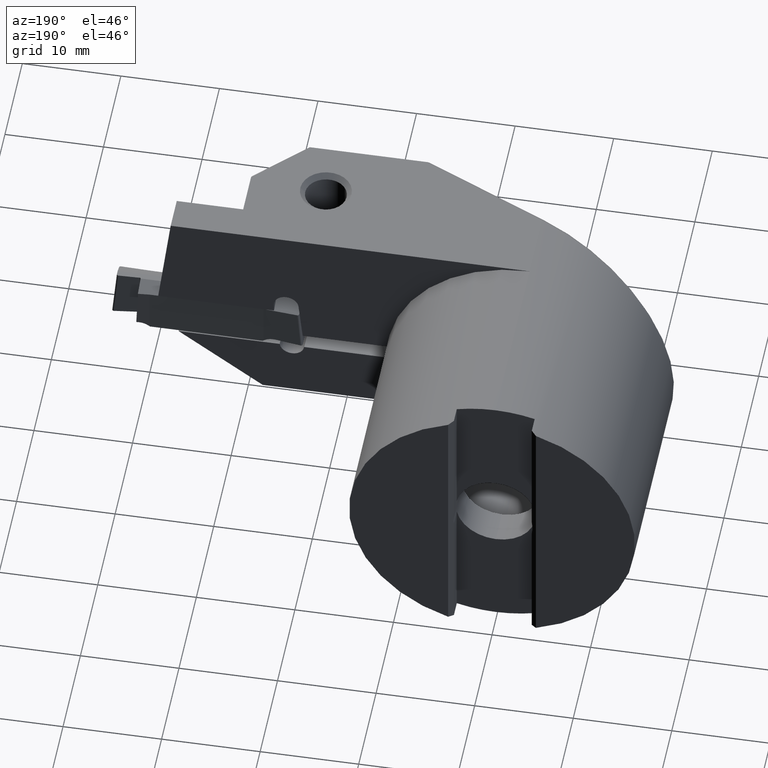
[diagram: clean part render]
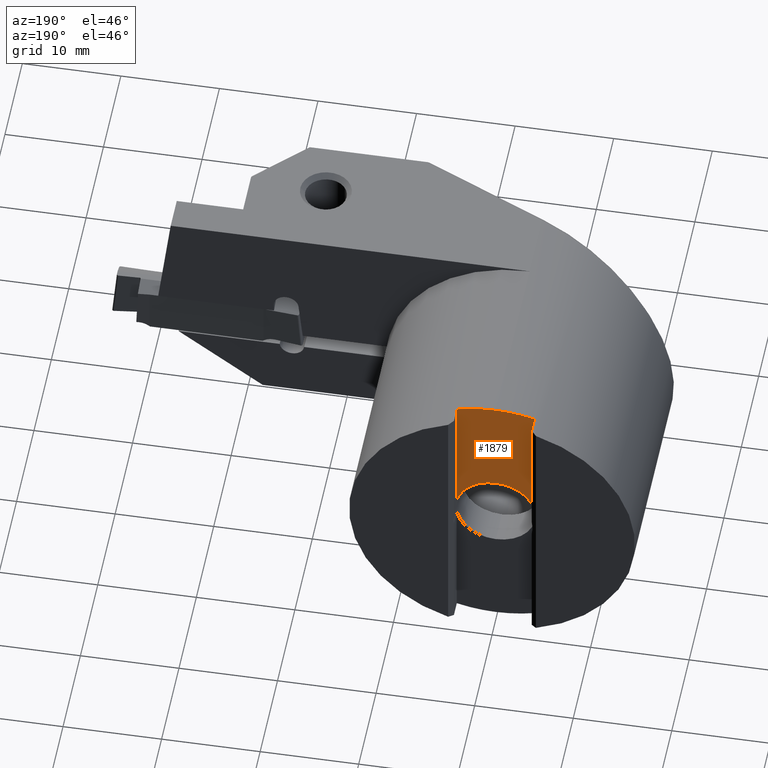
[diagram: same view with one face highlighted and labeled with its STEP entity id]
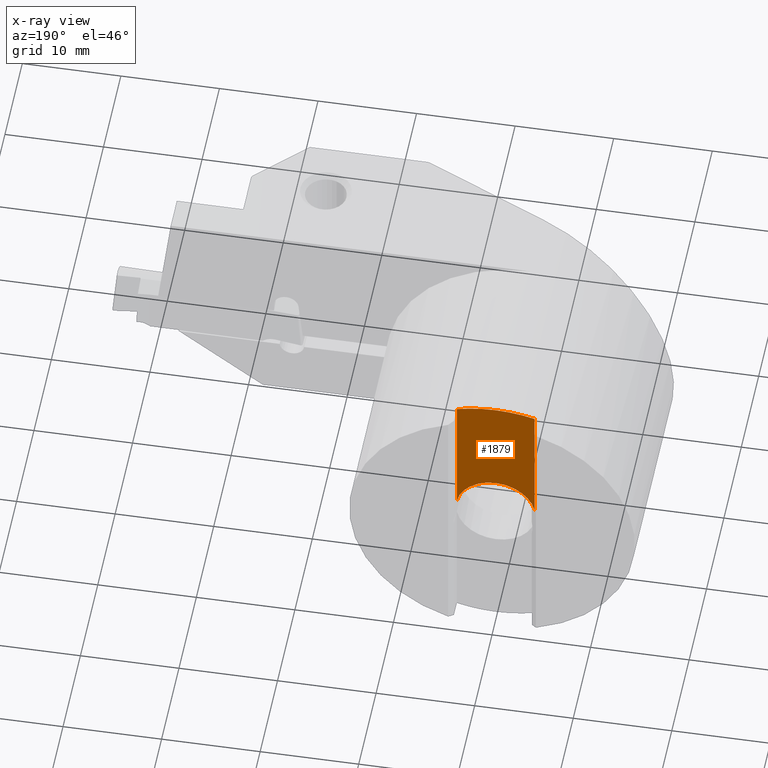
[diagram: x-ray of the same camera — body ghosted, the highlighted face saturated]
A machine part, auxiliary view. The second image highlights one B-rep face of the part: STEP entity #1879.
The next image is the same camera in x-ray: the body ghosted, the highlighted face saturated — about 0% of this face is hidden behind the body in this view.
In plain terms, the highlighted planar face has unit normal (0, -1, 0).
Its self-contained STEP definition (entity closure, byte-faithful):
#883=VERTEX_POINT('NONE',#2427);
#979=EDGE_CURVE('NONE',#2245,#1381,#2535,.T.);
#1045=VERTEX_POINT('NONE',#2606);
#1079=EDGE_CURVE('NONE',#1605,#1045,#2647,.F.);
#1283=EDGE_CURVE('NONE',#1475,#1045,#2865,.T.);
#1381=VERTEX_POINT('NONE',#2972);
#1475=VERTEX_POINT('NONE',#3075);
#1605=VERTEX_POINT('NONE',#3221);
#1879=ADVANCED_FACE('NONE',(#3520),#3521,.F.);
#1891=EDGE_CURVE('NONE',#883,#1475,#3534,.F.);
#1925=EDGE_CURVE('NONE',#1381,#1605,#3572,.F.);
#2163=EDGE_CURVE('NONE',#2245,#883,#3840,.F.);
#2245=VERTEX_POINT('NONE',#3926);
#2427=CARTESIAN_POINT('',(0.0,-2.15,14.5));
#2535=LINE('',#4517,#4518);
#2606=CARTESIAN_POINT('',(-3.95,-2.15,0.773385414912902));
#2647=CIRCLE('',#4750,4.025);
#2865=LINE('',#5098,#5099);
#2972=CARTESIAN_POINT('',(3.95,-2.15,0.773385414912902));
#3075=CARTESIAN_POINT('',(-3.95,-2.15,13.9516128099944));
#3221=CARTESIAN_POINT('',(0.0,-2.15,4.025));
#3520=FACE_OUTER_BOUND('',#6363,.T.);
#3521=PLANE('',#6364);
#3534=CIRCLE('',#6391,14.5);
#3572=CIRCLE('',#6437,4.025);
#3840=CIRCLE('',#6897,14.5);
#3926=CARTESIAN_POINT('',(3.95,-2.15,13.9516128099944));
#4517=CARTESIAN_POINT('',(3.95,-2.15,15.0));
#4518=VECTOR('',#7416,1.0);
#4750=AXIS2_PLACEMENT_3D('',#7544,#7545,#7546);
#5098=CARTESIAN_POINT('',(-3.95,-2.15,15.0));
#5099=VECTOR('',#7729,1.0);
#6363=EDGE_LOOP('',(#8445,#8446,#8447,#8448,#8449,#8450));
#6364=AXIS2_PLACEMENT_3D('',#8451,#8452,#8453);
#6391=AXIS2_PLACEMENT_3D('',#8463,#8464,#8465);
#6437=AXIS2_PLACEMENT_3D('',#8509,#8510,#8511);
#6897=AXIS2_PLACEMENT_3D('',#8826,#8827,#8828);
#7416=DIRECTION('',(0.0,0.0,-1.0));
#7544=CARTESIAN_POINT('',(0.0,-2.15,0.0));
#7545=DIRECTION('',(-0.0,1.0,0.0));
#7546=DIRECTION('',(0.0,0.0,1.0));
#7729=DIRECTION('',(0.0,0.0,-1.0));
#8445=ORIENTED_EDGE('',*,*,#2163,.F.);
#8446=ORIENTED_EDGE('',*,*,#979,.T.);
#8447=ORIENTED_EDGE('',*,*,#1925,.T.);
#8448=ORIENTED_EDGE('',*,*,#1079,.T.);
#8449=ORIENTED_EDGE('',*,*,#1283,.F.);
#8450=ORIENTED_EDGE('',*,*,#1891,.F.);
#8451=CARTESIAN_POINT('',(-3.95,-2.15,15.0));
#8452=DIRECTION('',(0.0,-1.0,0.0));
#8453=DIRECTION('',(1.0,0.0,0.0));
#8463=CARTESIAN_POINT('',(0.0,-2.15,0.0));
#8464=DIRECTION('',(-0.0,1.0,0.0));
#8465=DIRECTION('',(0.0,0.0,1.0));
#8509=CARTESIAN_POINT('',(0.0,-2.15,0.0));
#8510=DIRECTION('',(-0.0,1.0,0.0));
#8511=DIRECTION('',(0.0,0.0,1.0));
#8826=CARTESIAN_POINT('',(0.0,-2.15,0.0));
#8827=DIRECTION('',(-0.0,1.0,0.0));
#8828=DIRECTION('',(0.0,0.0,1.0));